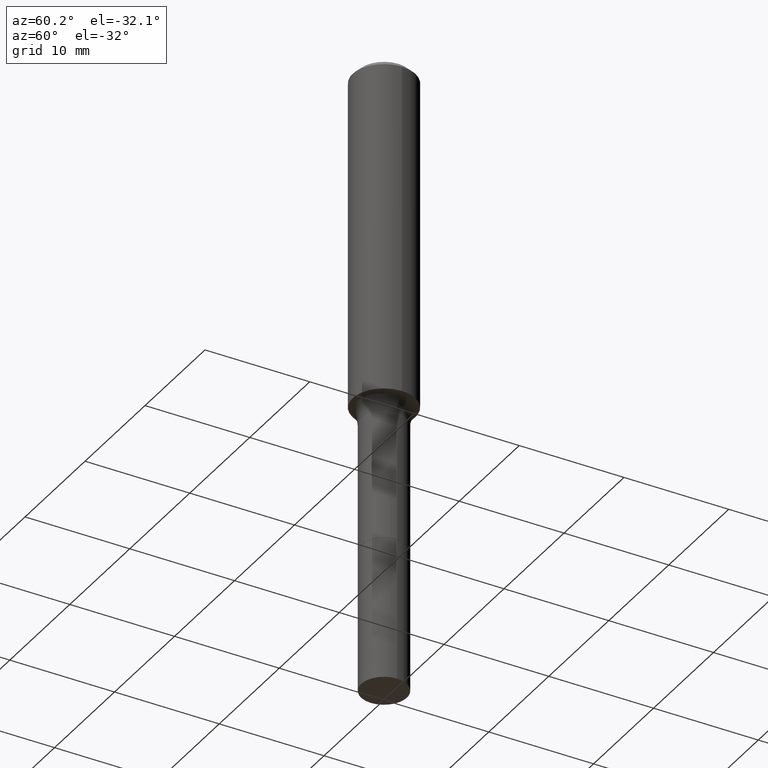
[diagram: clean part render]
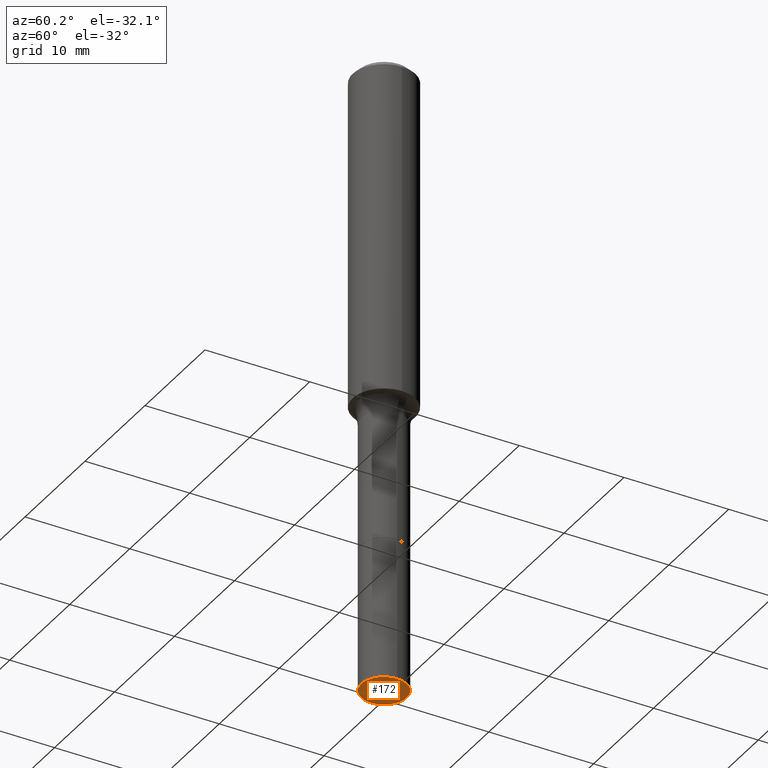
[diagram: same view with one face highlighted and labeled with its STEP entity id]
A machine part, auxiliary view. The second image highlights one B-rep face of the part: STEP entity #172.
In plain terms, the highlighted planar face has unit normal (0, -0, -1).
Its self-contained STEP definition (entity closure, byte-faithful):
#65 = CARTESIAN_POINT ( 'NONE',  ( 0.08595000000000012352, -8.847762860762413853E-15, -2.362200000000000077 ) ) ;
#74 = AXIS2_PLACEMENT_3D ( 'NONE', #377, #173, #419 ) ;
#90 = CIRCLE ( 'NONE', #74, 0.08595000000000012352 ) ;
#143 = DIRECTION ( 'NONE',  ( -2.445468806185136597E-29, 3.491481338843145583E-15, 1.000000000000000000 ) ) ;
#161 = CIRCLE ( 'NONE', #463, 0.08595000000000012352 ) ;
#172 = ADVANCED_FACE ( 'NONE', ( #237 ), #196, .T. ) ;
#173 = DIRECTION ( 'NONE',  ( -2.445468806185136597E-29, 3.491481338843145583E-15, 1.000000000000000000 ) ) ;
#183 = ORIENTED_EDGE ( 'NONE', *, *, #353, .F. ) ;
#196 = PLANE ( 'NONE',  #445 ) ;
#214 = EDGE_CURVE ( 'NONE', #309, #481, #90, .T. ) ;
#221 = DIRECTION ( 'NONE',  ( -1.000000000000000000, 6.982962677686265922E-15, -4.876176775795935793E-29 ) ) ;
#236 = EDGE_LOOP ( 'NONE', ( #302, #183 ) ) ;
#237 = FACE_OUTER_BOUND ( 'NONE', #236, .T. ) ;
#302 = ORIENTED_EDGE ( 'NONE', *, *, #214, .F. ) ;
#304 = CARTESIAN_POINT ( 'NONE',  ( 5.776686413970529753E-29, -8.247577218615279626E-15, -2.362200000000000077 ) ) ;
#309 = VERTEX_POINT ( 'NONE', #65 ) ;
#352 = CARTESIAN_POINT ( 'NONE',  ( 5.776686413970529753E-29, -8.247577218615279626E-15, -2.362200000000000077 ) ) ;
#353 = EDGE_CURVE ( 'NONE', #481, #309, #161, .T. ) ;
#377 = CARTESIAN_POINT ( 'NONE',  ( 5.776686413970529753E-29, -8.247577218615279626E-15, -2.362200000000000077 ) ) ;
#419 = DIRECTION ( 'NONE',  ( 1.000000000000000000, -6.982962677686262766E-15, 0.000000000000000000 ) ) ;
#445 = AXIS2_PLACEMENT_3D ( 'NONE', #352, #485, #221 ) ;
#450 = CARTESIAN_POINT ( 'NONE',  ( -0.08595000000000012352, -6.701148738419506790E-15, -2.362200000000000077 ) ) ;
#463 = AXIS2_PLACEMENT_3D ( 'NONE', #304, #143, #507 ) ;
#481 = VERTEX_POINT ( 'NONE', #450 ) ;
#485 = DIRECTION ( 'NONE',  ( 2.438088387897960049E-29, -3.491481338843145188E-15, -1.000000000000000000 ) ) ;
#507 = DIRECTION ( 'NONE',  ( 1.000000000000000000, -6.982962677686262766E-15, 0.000000000000000000 ) ) ;